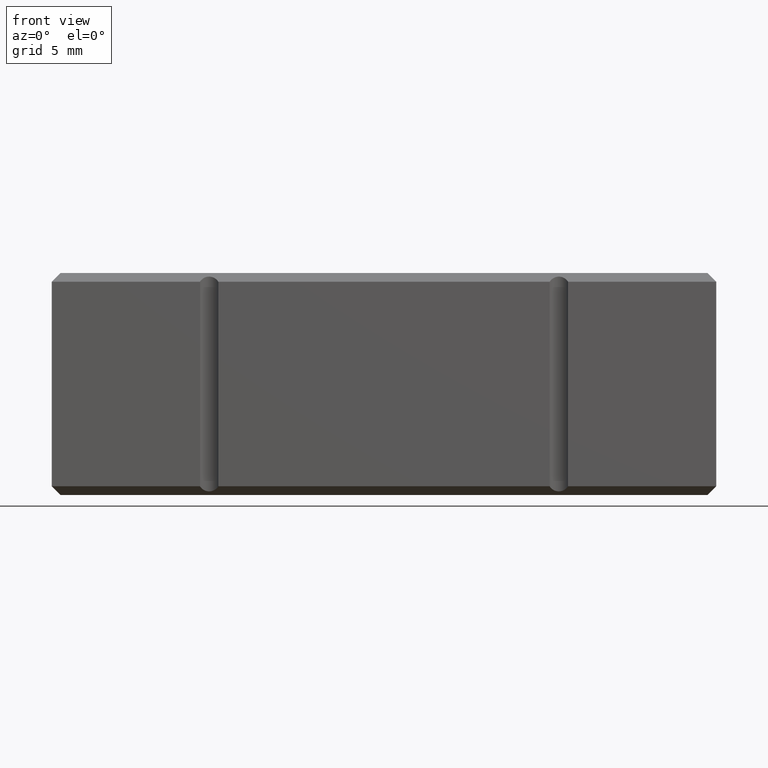
[diagram: clean part render]
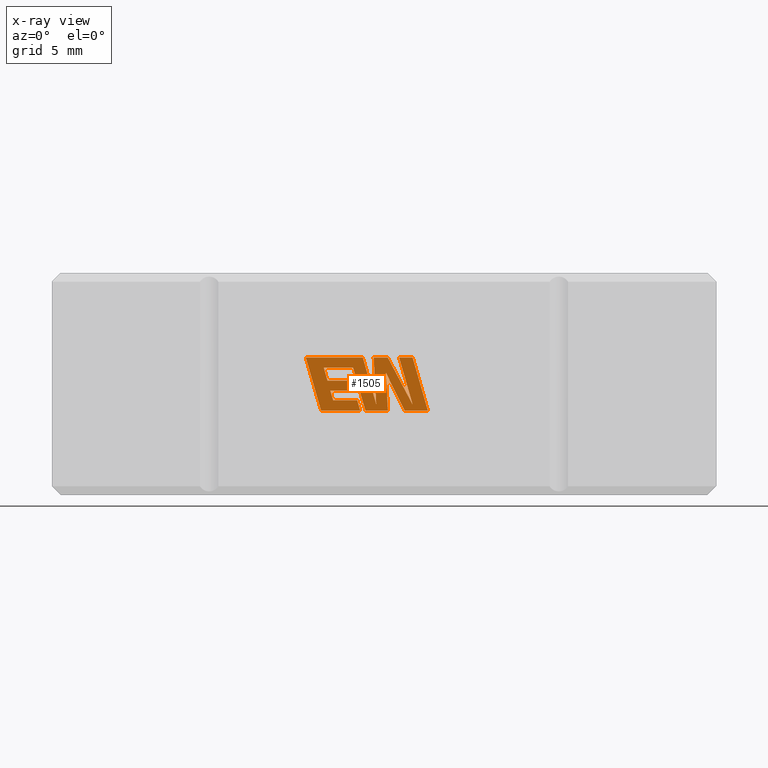
[diagram: x-ray — body ghosted, one internal face saturated and labeled with its STEP entity id]
A machine part, front view, then the same camera in x-ray: the body is ghosted and one INTERNAL B-rep face — a face not visible from any outside direction — is saturated and labeled: STEP entity #1505.
In plain terms, the highlighted planar face has unit normal (0, -1, 0).
Its self-contained STEP definition (entity closure, byte-faithful):
#9 = DIRECTION ( 'NONE',  ( 0.2746459304916928357, 0.000000000000000000, -0.9615454294334471186 ) ) ;
#25 = VERTEX_POINT ( 'NONE', #2737 ) ;
#37 = VECTOR ( 'NONE', #2827, 1000.000000000000227 ) ;
#65 = EDGE_CURVE ( 'NONE', #2602, #2893, #502, .T. ) ;
#69 = CARTESIAN_POINT ( 'NONE',  ( 20.63348747674318062, 12.00000000000000000, 7.861159625087134728 ) ) ;
#83 = VECTOR ( 'NONE', #761, 1000.000000000000000 ) ;
#128 = PLANE ( 'NONE',  #2013 ) ;
#130 = VECTOR ( 'NONE', #1666, 1000.000000000000227 ) ;
#178 = VECTOR ( 'NONE', #1473, 1000.000000000000000 ) ;
#197 = CARTESIAN_POINT ( 'NONE',  ( 15.55304167746695043, 12.00000000000000000, 7.285798636887586888 ) ) ;
#243 = VECTOR ( 'NONE', #2997, 1000.000000000000000 ) ;
#278 = VERTEX_POINT ( 'NONE', #2238 ) ;
#336 = EDGE_CURVE ( 'NONE', #1924, #2602, #2470, .T. ) ;
#367 = VECTOR ( 'NONE', #901, 1000.000000000000000 ) ;
#389 = ORIENTED_EDGE ( 'NONE', *, *, #1548, .F. ) ;
#394 = ORIENTED_EDGE ( 'NONE', *, *, #3094, .F. ) ;
#397 = VERTEX_POINT ( 'NONE', #2513 ) ;
#470 = CARTESIAN_POINT ( 'NONE',  ( 17.78532644624192471, 12.00000000000000000, 7.861159625087134728 ) ) ;
#472 = EDGE_CURVE ( 'NONE', #535, #2145, #2263, .T. ) ;
#483 = CARTESIAN_POINT ( 'NONE',  ( 18.55839018729306744, 12.00000000000000000, 5.168769972878560992 ) ) ;
#502 = LINE ( 'NONE', #470, #3059 ) ;
#505 = DIRECTION ( 'NONE',  ( -0.2765379750249967183, 0.000000000000000000, 0.9610029908221275896 ) ) ;
#506 = EDGE_CURVE ( 'NONE', #2277, #397, #2206, .T. ) ;
#514 = ORIENTED_EDGE ( 'NONE', *, *, #3123, .F. ) ;
#519 = CARTESIAN_POINT ( 'NONE',  ( 17.22950584882248748, 12.00000000000000000, 7.285798636887586888 ) ) ;
#530 = ORIENTED_EDGE ( 'NONE', *, *, #472, .F. ) ;
#531 = ORIENTED_EDGE ( 'NONE', *, *, #336, .F. ) ;
#535 = VERTEX_POINT ( 'NONE', #197 ) ;
#536 = DIRECTION ( 'NONE',  ( 0.05375259206908789694, 0.000000000000000000, -0.9985542843760945031 ) ) ;
#551 = CARTESIAN_POINT ( 'NONE',  ( 17.93340121282047406, 12.00000000000000000, 4.836932798821947266 ) ) ;
#568 = ORIENTED_EDGE ( 'NONE', *, *, #2775, .F. ) ;
#601 = LINE ( 'NONE', #1618, #1049 ) ;
#625 = ORIENTED_EDGE ( 'NONE', *, *, #1244, .F. ) ;
#652 = ORIENTED_EDGE ( 'NONE', *, *, #2649, .F. ) ;
#658 = VERTEX_POINT ( 'NONE', #1616 ) ;
#682 = LINE ( 'NONE', #895, #243 ) ;
#690 = CARTESIAN_POINT ( 'NONE',  ( 14.52730462037847836, 12.00000000000000000, 7.861159625087134728 ) ) ;
#724 = DIRECTION ( 'NONE',  ( 0.2740217765954066076, 0.000000000000000000, -0.9617234872620595842 ) ) ;
#747 = CARTESIAN_POINT ( 'NONE',  ( 17.06505394035912460, 12.00000000000000000, 6.534160356962032346 ) ) ;
#753 = CARTESIAN_POINT ( 'NONE',  ( 15.55304167746695043, 12.00000000000000000, 7.285798636887586888 ) ) ;
#754 = EDGE_CURVE ( 'NONE', #2145, #2878, #2779, .T. ) ;
#761 = DIRECTION ( 'NONE',  ( 1.000000000000000000, 0.000000000000000000, 0.000000000000000000 ) ) ;
#785 = CARTESIAN_POINT ( 'NONE',  ( 19.22131242482318569, 12.00000000000000000, 4.836932798821947266 ) ) ;
#791 = ORIENTED_EDGE ( 'NONE', *, *, #1856, .F. ) ;
#813 = CARTESIAN_POINT ( 'NONE',  ( 15.92670907585014639, 12.00000000000000000, 5.975084558317764305 ) ) ;
#825 = VECTOR ( 'NONE', #2351, 1000.000000000000000 ) ;
#840 = DIRECTION ( 'NONE',  ( -0.05596501978067924821, 0.000000000000000000, 0.9984327301130246912 ) ) ;
#851 = CARTESIAN_POINT ( 'NONE',  ( -20.99801050622235010, 12.00000000000000000, 0.000000000000000000 ) ) ;
#879 = CARTESIAN_POINT ( 'NONE',  ( 19.10500930886436066, 12.00000000000000000, 6.997479300053103479 ) ) ;
#895 = CARTESIAN_POINT ( 'NONE',  ( 18.40747402078669381, 12.00000000000000000, 7.861159625087134728 ) ) ;
#901 = DIRECTION ( 'NONE',  ( -1.000000000000000000, 0.000000000000000000, 0.000000000000000000 ) ) ;
#909 = EDGE_CURVE ( 'NONE', #1133, #278, #2705, .T. ) ;
#920 = VECTOR ( 'NONE', #536, 1000.000000000000114 ) ;
#994 = CARTESIAN_POINT ( 'NONE',  ( 15.76720433393765930, 12.00000000000000000, 6.534160356962032346 ) ) ;
#1001 = LINE ( 'NONE', #747, #3160 ) ;
#1004 = CARTESIAN_POINT ( 'NONE',  ( 19.10500930886436066, 12.00000000000000000, 6.997479300053103479 ) ) ;
#1024 = LINE ( 'NONE', #1802, #37 ) ;
#1045 = ORIENTED_EDGE ( 'NONE', *, *, #2796, .F. ) ;
#1049 = VECTOR ( 'NONE', #1403, 1000.000000000000000 ) ;
#1104 = EDGE_CURVE ( 'NONE', #2502, #1950, #1753, .T. ) ;
#1114 = LINE ( 'NONE', #1596, #1507 ) ;
#1133 = VERTEX_POINT ( 'NONE', #785 ) ;
#1142 = DIRECTION ( 'NONE',  ( 0.000000000000000000, 0.000000000000000000, -1.000000000000000000 ) ) ;
#1149 = VECTOR ( 'NONE', #1228, 1000.000000000000000 ) ;
#1183 = CARTESIAN_POINT ( 'NONE',  ( 19.86498469222380336, 12.00000000000000000, 7.861159625087134728 ) ) ;
#1186 = CARTESIAN_POINT ( 'NONE',  ( 16.09038856426462871, 12.00000000000000000, 5.412578846798971277 ) ) ;
#1190 = FACE_OUTER_BOUND ( 'NONE', #1691, .T. ) ;
#1210 = DIRECTION ( 'NONE',  ( 1.000000000000000000, 0.000000000000000000, 0.000000000000000000 ) ) ;
#1225 = EDGE_CURVE ( 'NONE', #1926, #1462, #1322, .T. ) ;
#1228 = DIRECTION ( 'NONE',  ( 1.000000000000000000, 0.000000000000000000, 0.000000000000000000 ) ) ;
#1244 = EDGE_CURVE ( 'NONE', #1824, #1926, #1024, .T. ) ;
#1249 = ORIENTED_EDGE ( 'NONE', *, *, #2535, .F. ) ;
#1264 = ORIENTED_EDGE ( 'NONE', *, *, #65, .F. ) ;
#1293 = DIRECTION ( 'NONE',  ( -0.4443210308329511027, 0.000000000000000000, 0.8958676361826806156 ) ) ;
#1315 = LINE ( 'NONE', #2345, #130 ) ;
#1322 = LINE ( 'NONE', #3107, #825 ) ;
#1359 = CARTESIAN_POINT ( 'NONE',  ( 19.22131242482318569, 12.00000000000000000, 4.836932798821947266 ) ) ;
#1361 = ORIENTED_EDGE ( 'NONE', *, *, #3037, .F. ) ;
#1403 = DIRECTION ( 'NONE',  ( -1.000000000000000000, 0.000000000000000000, 0.000000000000000000 ) ) ;
#1462 = VERTEX_POINT ( 'NONE', #2659 ) ;
#1473 = DIRECTION ( 'NONE',  ( -1.000000000000000000, 0.000000000000000000, 0.000000000000000000 ) ) ;
#1486 = CARTESIAN_POINT ( 'NONE',  ( 19.86498469222380336, 12.00000000000000000, 7.861159625087134728 ) ) ;
#1489 = DIRECTION ( 'NONE',  ( 0.2759782365590778275, 0.000000000000000000, -0.9611638845408942977 ) ) ;
#1490 = VECTOR ( 'NONE', #2196, 1000.000000000000000 ) ;
#1501 = LINE ( 'NONE', #1004, #920 ) ;
#1504 = CARTESIAN_POINT ( 'NONE',  ( 17.63175278934695811, 12.00000000000000000, 4.836932798821948154 ) ) ;
#1505 = ADVANCED_FACE ( 'NONE', ( #1190 ), #128, .T. ) ;
#1507 = VECTOR ( 'NONE', #2076, 1000.000000000000114 ) ;
#1548 = EDGE_CURVE ( 'NONE', #278, #2360, #3135, .T. ) ;
#1563 = VECTOR ( 'NONE', #505, 1000.000000000000114 ) ;
#1596 = CARTESIAN_POINT ( 'NONE',  ( 20.64187375165472460, 12.00000000000000000, 5.155804350488072174 ) ) ;
#1607 = VECTOR ( 'NONE', #724, 1000.000000000000114 ) ;
#1616 = CARTESIAN_POINT ( 'NONE',  ( 19.21370584693255168, 12.00000000000000000, 7.861159625087134728 ) ) ;
#1618 = CARTESIAN_POINT ( 'NONE',  ( 17.22474259180902223, 12.00000000000000000, 5.975084558317764305 ) ) ;
#1653 = ORIENTED_EDGE ( 'NONE', *, *, #1225, .F. ) ;
#1661 = VECTOR ( 'NONE', #2358, 1000.000000000000114 ) ;
#1666 = DIRECTION ( 'NONE',  ( 0.4668459304955216993, 0.000000000000000000, -0.8843386665637608113 ) ) ;
#1675 = ORIENTED_EDGE ( 'NONE', *, *, #2353, .F. ) ;
#1691 = EDGE_LOOP ( 'NONE', ( #1653, #625, #652, #1361, #1045, #1249, #514, #1264, #531, #1675, #1942, #3121, #3069, #394, #2463, #568, #3202, #530, #2782, #389, #2933, #2863, #791 ) ) ;
#1695 = CARTESIAN_POINT ( 'NONE',  ( 17.24702322986160397, 12.00000000000000000, 7.861159625087134728 ) ) ;
#1753 = LINE ( 'NONE', #1186, #2335 ) ;
#1762 = DIRECTION ( 'NONE',  ( 0.2732148821746252509, 0.000000000000000000, -0.9619530280415492518 ) ) ;
#1777 = VECTOR ( 'NONE', #2053, 1000.000000000000000 ) ;
#1800 = CARTESIAN_POINT ( 'NONE',  ( 17.63175278934695811, 12.00000000000000000, 4.836932798821948154 ) ) ;
#1802 = CARTESIAN_POINT ( 'NONE',  ( 20.63348747674318062, 12.00000000000000000, 7.861159625087134728 ) ) ;
#1811 = LINE ( 'NONE', #3100, #1999 ) ;
#1824 = VERTEX_POINT ( 'NONE', #69 ) ;
#1848 = LINE ( 'NONE', #813, #1661 ) ;
#1856 = EDGE_CURVE ( 'NONE', #1462, #2389, #1811, .T. ) ;
#1857 = CARTESIAN_POINT ( 'NONE',  ( 15.76720433393765930, 12.00000000000000000, 6.534160356962032346 ) ) ;
#1924 = VERTEX_POINT ( 'NONE', #690 ) ;
#1926 = VERTEX_POINT ( 'NONE', #2267 ) ;
#1942 = ORIENTED_EDGE ( 'NONE', *, *, #506, .F. ) ;
#1950 = VERTEX_POINT ( 'NONE', #2596 ) ;
#1999 = VECTOR ( 'NONE', #1293, 1000.000000000000000 ) ;
#2013 = AXIS2_PLACEMENT_3D ( 'NONE', #851, #2411, #1142 ) ;
#2053 = DIRECTION ( 'NONE',  ( -1.000000000000000000, 0.000000000000000000, 0.000000000000000000 ) ) ;
#2076 = DIRECTION ( 'NONE',  ( -0.2760118818968571586, 0.000000000000000000, 0.9611542233438685745 ) ) ;
#2092 = DIRECTION ( 'NONE',  ( -0.2762517575166442696, 0.000000000000000000, 0.9610853065513825788 ) ) ;
#2103 = EDGE_CURVE ( 'NONE', #2272, #2660, #601, .T. ) ;
#2145 = VERTEX_POINT ( 'NONE', #1857 ) ;
#2154 = VECTOR ( 'NONE', #1762, 1000.000000000000000 ) ;
#2196 = DIRECTION ( 'NONE',  ( 1.000000000000000000, 0.000000000000000000, 0.000000000000000000 ) ) ;
#2206 = LINE ( 'NONE', #1504, #178 ) ;
#2238 = CARTESIAN_POINT ( 'NONE',  ( 17.93340121282047406, 12.00000000000000000, 4.836932798821947266 ) ) ;
#2257 = LINE ( 'NONE', #1486, #83 ) ;
#2263 = LINE ( 'NONE', #753, #1607 ) ;
#2267 = CARTESIAN_POINT ( 'NONE',  ( 21.50297498832534870, 12.00000000000000000, 4.836932798821947266 ) ) ;
#2272 = VERTEX_POINT ( 'NONE', #3040 ) ;
#2273 = VERTEX_POINT ( 'NONE', #2810 ) ;
#2277 = VERTEX_POINT ( 'NONE', #1800 ) ;
#2298 = CARTESIAN_POINT ( 'NONE',  ( 17.22950584882248748, 12.00000000000000000, 7.285798636887586888 ) ) ;
#2335 = VECTOR ( 'NONE', #1210, 1000.000000000000000 ) ;
#2345 = CARTESIAN_POINT ( 'NONE',  ( 19.21370584693255168, 12.00000000000000000, 7.861159625087134728 ) ) ;
#2351 = DIRECTION ( 'NONE',  ( -1.000000000000000000, 0.000000000000000000, 0.000000000000000000 ) ) ;
#2353 = EDGE_CURVE ( 'NONE', #397, #1924, #2575, .T. ) ;
#2358 = DIRECTION ( 'NONE',  ( 0.2793947940878254155, 0.000000000000000000, -0.9601763114327604987 ) ) ;
#2360 = VERTEX_POINT ( 'NONE', #2298 ) ;
#2365 = VECTOR ( 'NONE', #840, 1000.000000000000114 ) ;
#2389 = VERTEX_POINT ( 'NONE', #879 ) ;
#2411 = DIRECTION ( 'NONE',  ( 0.000000000000000000, -1.000000000000000000, 0.000000000000000000 ) ) ;
#2425 = CARTESIAN_POINT ( 'NONE',  ( 17.06505394035912460, 12.00000000000000000, 6.534160356962032346 ) ) ;
#2463 = ORIENTED_EDGE ( 'NONE', *, *, #2103, .F. ) ;
#2470 = LINE ( 'NONE', #1695, #1490 ) ;
#2502 = VERTEX_POINT ( 'NONE', #2698 ) ;
#2508 = LINE ( 'NONE', #2557, #2154 ) ;
#2513 = CARTESIAN_POINT ( 'NONE',  ( 15.39755535897003114, 12.00000000000000000, 4.836932798821948154 ) ) ;
#2535 = EDGE_CURVE ( 'NONE', #25, #658, #682, .T. ) ;
#2557 = CARTESIAN_POINT ( 'NONE',  ( 17.46825721046975843, 12.00000000000000000, 5.412578846798971277 ) ) ;
#2575 = LINE ( 'NONE', #3294, #1563 ) ;
#2596 = CARTESIAN_POINT ( 'NONE',  ( 17.46825721046975843, 12.00000000000000000, 5.412578846798971277 ) ) ;
#2602 = VERTEX_POINT ( 'NONE', #3197 ) ;
#2649 = EDGE_CURVE ( 'NONE', #2881, #1824, #2257, .T. ) ;
#2658 = EDGE_CURVE ( 'NONE', #1950, #2277, #2508, .T. ) ;
#2660 = VERTEX_POINT ( 'NONE', #2802 ) ;
#2659 = CARTESIAN_POINT ( 'NONE',  ( 20.17656967092860754, 12.00000000000000000, 4.836932798821947266 ) ) ;
#2667 = EDGE_CURVE ( 'NONE', #2360, #535, #3289, .T. ) ;
#2698 = CARTESIAN_POINT ( 'NONE',  ( 16.09038856426462871, 12.00000000000000000, 5.412578846798971277 ) ) ;
#2705 = LINE ( 'NONE', #1359, #367 ) ;
#2737 = CARTESIAN_POINT ( 'NONE',  ( 18.40747402078669381, 12.00000000000000000, 7.861159625087134728 ) ) ;
#2775 = EDGE_CURVE ( 'NONE', #2878, #2272, #1001, .T. ) ;
#2779 = LINE ( 'NONE', #994, #1149 ) ;
#2782 = ORIENTED_EDGE ( 'NONE', *, *, #2667, .F. ) ;
#2796 = EDGE_CURVE ( 'NONE', #658, #2273, #1315, .T. ) ;
#2802 = CARTESIAN_POINT ( 'NONE',  ( 15.92670907585014639, 12.00000000000000000, 5.975084558317764305 ) ) ;
#2810 = CARTESIAN_POINT ( 'NONE',  ( 20.64187375165472460, 12.00000000000000000, 5.155804350488072174 ) ) ;
#2827 = DIRECTION ( 'NONE',  ( 0.2763139702539137987, 0.000000000000000000, -0.9610674221107066151 ) ) ;
#2837 = CARTESIAN_POINT ( 'NONE',  ( 18.55839018729306744, 12.00000000000000000, 5.168769972878560992 ) ) ;
#2863 = ORIENTED_EDGE ( 'NONE', *, *, #2969, .F. ) ;
#2878 = VERTEX_POINT ( 'NONE', #2425 ) ;
#2881 = VERTEX_POINT ( 'NONE', #1183 ) ;
#2893 = VERTEX_POINT ( 'NONE', #483 ) ;
#2933 = ORIENTED_EDGE ( 'NONE', *, *, #909, .F. ) ;
#2969 = EDGE_CURVE ( 'NONE', #2389, #1133, #1501, .T. ) ;
#2997 = DIRECTION ( 'NONE',  ( 1.000000000000000000, 0.000000000000000000, 0.000000000000000000 ) ) ;
#3037 = EDGE_CURVE ( 'NONE', #2273, #2881, #1114, .T. ) ;
#3040 = CARTESIAN_POINT ( 'NONE',  ( 17.22474259180902223, 12.00000000000000000, 5.975084558317764305 ) ) ;
#3059 = VECTOR ( 'NONE', #1489, 1000.000000000000227 ) ;
#3069 = ORIENTED_EDGE ( 'NONE', *, *, #1104, .F. ) ;
#3094 = EDGE_CURVE ( 'NONE', #2660, #2502, #1848, .T. ) ;
#3100 = CARTESIAN_POINT ( 'NONE',  ( 20.17656967092860754, 12.00000000000000000, 4.836932798821947266 ) ) ;
#3107 = CARTESIAN_POINT ( 'NONE',  ( 21.50297498832534870, 12.00000000000000000, 4.836932798821947266 ) ) ;
#3121 = ORIENTED_EDGE ( 'NONE', *, *, #2658, .F. ) ;
#3123 = EDGE_CURVE ( 'NONE', #2893, #25, #3133, .T. ) ;
#3133 = LINE ( 'NONE', #2837, #2365 ) ;
#3135 = LINE ( 'NONE', #551, #3172 ) ;
#3160 = VECTOR ( 'NONE', #9, 1000.000000000000000 ) ;
#3172 = VECTOR ( 'NONE', #2092, 1000.000000000000114 ) ;
#3197 = CARTESIAN_POINT ( 'NONE',  ( 17.78532644624192471, 12.00000000000000000, 7.861159625087134728 ) ) ;
#3202 = ORIENTED_EDGE ( 'NONE', *, *, #754, .F. ) ;
#3289 = LINE ( 'NONE', #519, #1777 ) ;
#3294 = CARTESIAN_POINT ( 'NONE',  ( 15.39755535897003114, 12.00000000000000000, 4.836932798821948154 ) ) ;